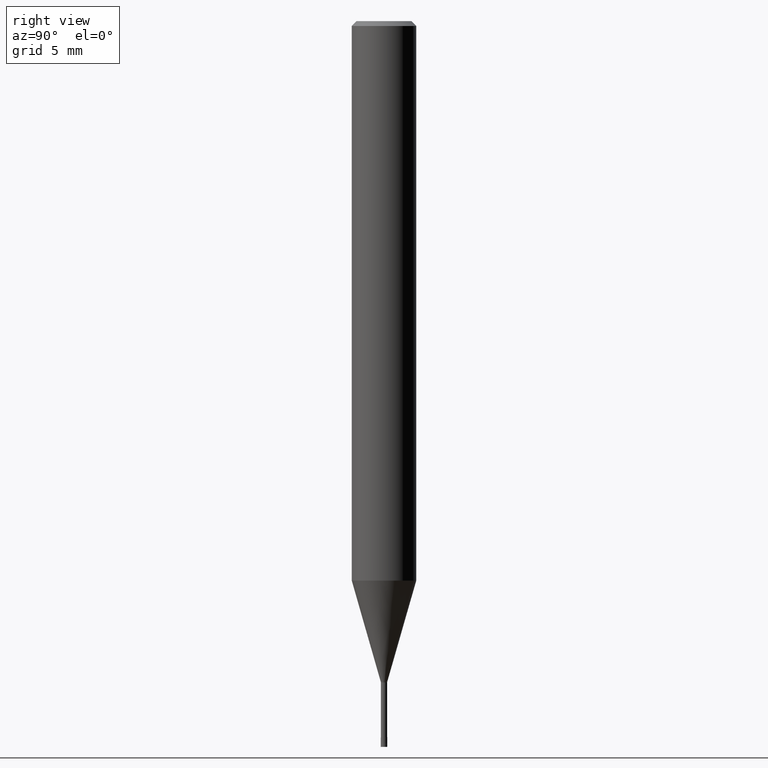
[diagram: clean part render]
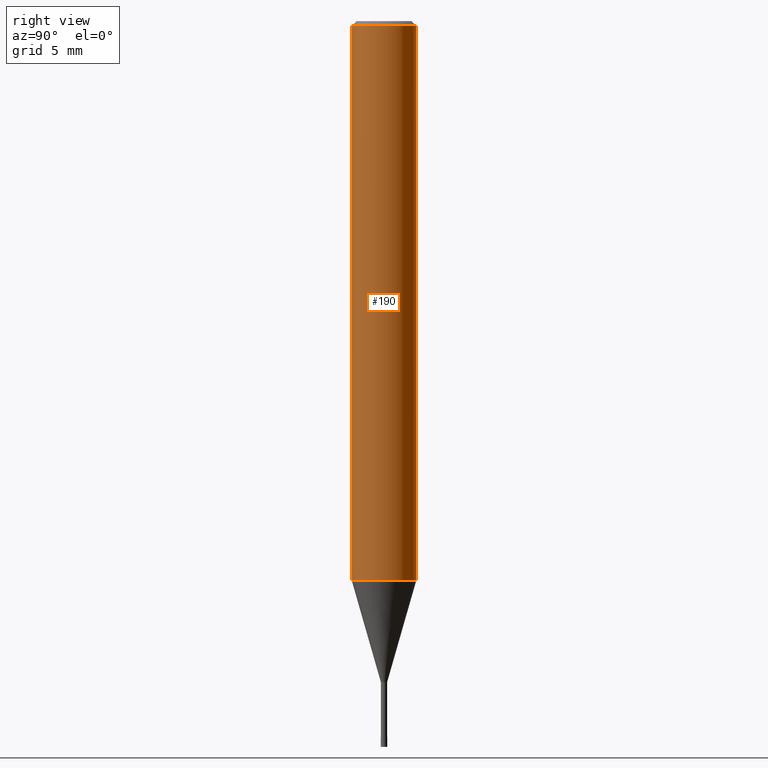
[diagram: same view with one face highlighted and labeled with its STEP entity id]
A machine part, right view. The second image highlights one B-rep face of the part: STEP entity #190.
In plain terms, the highlighted cylindrical surface (edge-blend (fillet) strip) has radius 2 mm, axis along (-0, -0, 1).
Its self-contained STEP definition (entity closure, byte-faithful):
#98=VERTEX_POINT('',#236);
#118=EDGE_CURVE('',#128,#160,#258,.T.);
#128=VERTEX_POINT('',#270);
#132=EDGE_CURVE('',#160,#202,#275,.T.);
#152=EDGE_CURVE('',#128,#98,#296,.T.);
#160=VERTEX_POINT('',#305);
#172=EDGE_CURVE('',#202,#98,#319,.T.);
#190=ADVANCED_FACE('',(#338),#339,.T.);
#202=VERTEX_POINT('',#354);
#236=CARTESIAN_POINT('',(2.44921270764475E-016,-2.0,-0.299999999999997));
#258=LINE('',#409,#410);
#270=CARTESIAN_POINT('',(0.0,2.0,-0.299999999999997));
#275=CIRCLE('',#430,2.0);
#296=CIRCLE('',#461,2.0);
#305=CARTESIAN_POINT('',(0.0,2.0,-34.688));
#319=LINE('',#491,#492);
#338=FACE_OUTER_BOUND('',#514,.T.);
#339=CYLINDRICAL_SURFACE('',#515,2.0);
#354=CARTESIAN_POINT('',(2.44921270764475E-016,-2.0,-34.688));
#409=CARTESIAN_POINT('',(-2.44921270764475E-016,2.0,-17.494));
#410=VECTOR('',#577,1.0);
#430=AXIS2_PLACEMENT_3D('',#601,#602,#603);
#461=AXIS2_PLACEMENT_3D('',#624,#625,#626);
#491=CARTESIAN_POINT('',(2.44921270764475E-016,-2.0,-17.494));
#492=VECTOR('',#659,1.0);
#514=EDGE_LOOP('',(#678,#679,#680,#681));
#515=AXIS2_PLACEMENT_3D('',#682,#683,#684);
#577=DIRECTION('',(0.0,0.0,-1.0));
#601=CARTESIAN_POINT('',(0.0,0.0,-34.688));
#602=DIRECTION('',(0.0,0.0,-1.0));
#603=DIRECTION('',(0.0,1.0,0.0));
#624=CARTESIAN_POINT('',(0.0,0.0,-0.299999999999997));
#625=DIRECTION('',(0.0,0.0,-1.0));
#626=DIRECTION('',(0.0,1.0,0.0));
#659=DIRECTION('',(-0.0,-0.0,1.0));
#678=ORIENTED_EDGE('',*,*,#118,.F.);
#679=ORIENTED_EDGE('',*,*,#152,.T.);
#680=ORIENTED_EDGE('',*,*,#172,.F.);
#681=ORIENTED_EDGE('',*,*,#132,.F.);
#682=CARTESIAN_POINT('',(0.0,0.0,-17.494));
#683=DIRECTION('',(-0.0,-0.0,1.0));
#684=DIRECTION('',(0.0,1.0,0.0));